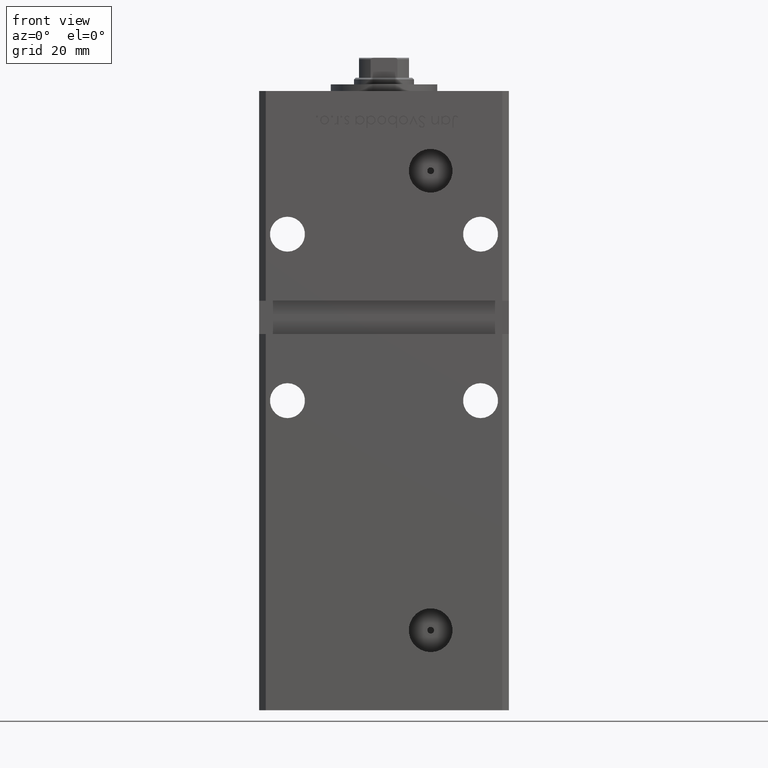
[diagram: clean part render]
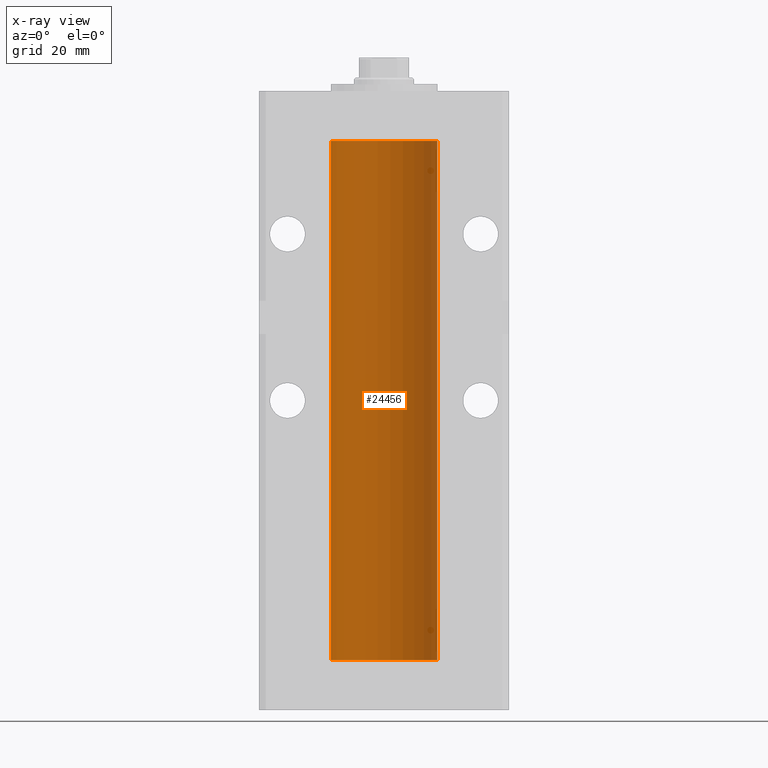
[diagram: x-ray — body ghosted, one internal face saturated and labeled with its STEP entity id]
A machine part, front view, then the same camera in x-ray: the body is ghosted and one INTERNAL B-rep face — a face not visible from any outside direction — is saturated and labeled: STEP entity #24456.
In plain terms, the highlighted cylindrical surface (partial cylindrical patch) has radius 16 mm, axis along (-0, -0, -1).
Its self-contained STEP definition (entity closure, byte-faithful):
#155 = EDGE_CURVE ( 'NONE', #2512, #1910, #17059, .T. ) ;
#1479 = ORIENTED_EDGE ( 'NONE', *, *, #155, .F. ) ;
#1910 = VERTEX_POINT ( 'NONE', #41380 ) ;
#2512 = VERTEX_POINT ( 'NONE', #36099 ) ;
#2632 = ORIENTED_EDGE ( 'NONE', *, *, #21463, .T. ) ;
#3349 = AXIS2_PLACEMENT_3D ( 'NONE', #50137, #50667, #5731 ) ;
#3623 = DIRECTION ( 'NONE',  ( -0.000000000000000000, 0.000000000000000000, 1.000000000000000000 ) ) ;
#4093 = EDGE_CURVE ( 'NONE', #1910, #11564, #21169, .T. ) ;
#5731 = DIRECTION ( 'NONE',  ( 1.000000000000000000, 0.000000000000000000, 0.000000000000000000 ) ) ;
#11564 = VERTEX_POINT ( 'NONE', #45943 ) ;
#11694 = CARTESIAN_POINT ( 'NONE',  ( 0.000000000000000000, 0.000000000000000000, 0.000000000000000000 ) ) ;
#12054 = AXIS2_PLACEMENT_3D ( 'NONE', #18216, #49262, #50055 ) ;
#13208 = CYLINDRICAL_SURFACE ( 'NONE', #12054, 16.00000000000000000 ) ;
#14257 = EDGE_CURVE ( 'NONE', #27735, #11564, #18691, .T. ) ;
#15392 = CIRCLE ( 'NONE', #3349, 16.00000000000000000 ) ;
#16795 = ORIENTED_EDGE ( 'NONE', *, *, #4093, .F. ) ;
#17059 = LINE ( 'NONE', #32703, #46809 ) ;
#18216 = CARTESIAN_POINT ( 'NONE',  ( 0.000000000000000000, 0.000000000000000000, 156.0000000000000000 ) ) ;
#18691 = LINE ( 'NONE', #51504, #22045 ) ;
#21169 = CIRCLE ( 'NONE', #27187, 16.00000000000000000 ) ;
#21463 = EDGE_CURVE ( 'NONE', #2512, #27735, #15392, .T. ) ;
#22045 = VECTOR ( 'NONE', #31093, 1000.000000000000000 ) ;
#24456 = ADVANCED_FACE ( 'NONE', ( #47016 ), #13208, .F. ) ;
#27187 = AXIS2_PLACEMENT_3D ( 'NONE', #11694, #3623, #27585 ) ;
#27585 = DIRECTION ( 'NONE',  ( 1.000000000000000000, 0.000000000000000000, 0.000000000000000000 ) ) ;
#27735 = VERTEX_POINT ( 'NONE', #37705 ) ;
#31093 = DIRECTION ( 'NONE',  ( -0.000000000000000000, -0.000000000000000000, -1.000000000000000000 ) ) ;
#31356 = ORIENTED_EDGE ( 'NONE', *, *, #14257, .T. ) ;
#32703 = CARTESIAN_POINT ( 'NONE',  ( 16.00000000000000000, 1.959434878635765131E-15, 156.0000000000000000 ) ) ;
#36099 = CARTESIAN_POINT ( 'NONE',  ( 16.00000000000000000, 1.959434878635765131E-15, 156.0000000000000000 ) ) ;
#37705 = CARTESIAN_POINT ( 'NONE',  ( -16.00000000000000000, 0.000000000000000000, 156.0000000000000000 ) ) ;
#41231 = EDGE_LOOP ( 'NONE', ( #1479, #2632, #31356, #16795 ) ) ;
#41380 = CARTESIAN_POINT ( 'NONE',  ( 16.00000000000000000, 1.959434878635765131E-15, 0.000000000000000000 ) ) ;
#45943 = CARTESIAN_POINT ( 'NONE',  ( -16.00000000000000000, 0.000000000000000000, 0.000000000000000000 ) ) ;
#46809 = VECTOR ( 'NONE', #48560, 1000.000000000000000 ) ;
#47016 = FACE_OUTER_BOUND ( 'NONE', #41231, .T. ) ;
#48560 = DIRECTION ( 'NONE',  ( -0.000000000000000000, -0.000000000000000000, -1.000000000000000000 ) ) ;
#49262 = DIRECTION ( 'NONE',  ( -0.000000000000000000, -0.000000000000000000, -1.000000000000000000 ) ) ;
#50055 = DIRECTION ( 'NONE',  ( -1.000000000000000000, 0.000000000000000000, 0.000000000000000000 ) ) ;
#50137 = CARTESIAN_POINT ( 'NONE',  ( 0.000000000000000000, 0.000000000000000000, 156.0000000000000000 ) ) ;
#50667 = DIRECTION ( 'NONE',  ( -0.000000000000000000, 0.000000000000000000, 1.000000000000000000 ) ) ;
#51504 = CARTESIAN_POINT ( 'NONE',  ( -16.00000000000000000, 0.000000000000000000, 156.0000000000000000 ) ) ;